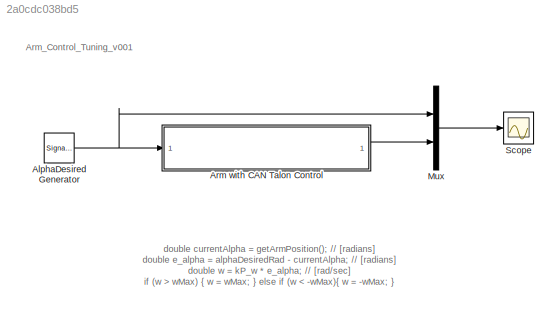
MODEL slx_2a0cdc038bd5
KIND model
CONFIG AbsTol = auto
CONFIG EnableMultiTasking = off
CONFIG FixedStep = auto
CONFIG MaxStep = 0.01
CONFIG MinStep = auto
CONFIG RelTol = 1e-3
CONFIG SampleTimeConstraint = Unconstrained
CONFIG Solver = VariableStepAuto
CONFIG SolverName = VariableStepAuto
CONFIG StartTime = 0.0
CONFIG StopTime = 10.0
BLOCK [SignalGenerator] AlphaDesired Generator
  Amplitude = 10
  Frequency = 0.5
  Ports = [0, 1]
  WaveForm = square
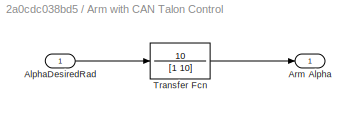
BLOCK [SubSystem] Arm with CAN Talon Control 
  Ports = [1, 1]
  RequestExecContextInheritance = off
  Variant = off
BLOCK [Inport] Arm with CAN Talon Control /AlphaDesiredRad
  IconDisplay = Port number
BLOCK [Outport] Arm with CAN Talon Control /Arm Alpha
  IconDisplay = Port number
BLOCK [TransferFcn] Arm with CAN Talon Control /Transfer Fcn
  Denominator = [1 10]
  Numerator = 10
BLOCK [Mux] Mux
  DisplayOption = bar
  Inputs = 2
  Ports = [2, 1]
BLOCK [Scope] Scope
  NumInputPorts = 1
  Ports = [1]
  ScopeSpecificationString = Simulink.scopes.TimeScopeBlockCfg('CurrentConfiguration', extmgr.ConfigurationSet(extmgr.Configuration('Core','General UI',true),extmgr.Configuration('Core','Source UI',true),extmgr.Configuration('Sources','WiredSimulink',true),extmgr.Configuration('Visuals','Time Domain',true,'SerializedDisplays',{struct('MinYLimReal','-12.5','MaxYLimReal','12.5','YLabelReal','','MinYLimMag','0.00000','MaxYLimMag...<+1428ch>
ANNOTATION (root): double currentAlpha = getArmPosition(); // [radians] double e_alpha = alphaDesiredRad - currentAlpha; // [radians] double w = kP_w * e_alpha; // [rad/sec] if (w > wMax) { w = wMax; } else if (w < -wMax){ w = -wMax; } double currentFPGA = m_timer.GetFPGATimestamp(); double elapsedTime = currentFPGA - lastFPGATime; lastFPGATime = currentFPGA; double alphaDesired_CAN_TALON = currentAlpha + (w * Ts); ...<+109ch>
ANNOTATION (root): Arm_Control_Tuning_v001
NET AlphaDesired Generator:1 -> Arm with CAN Talon Control :1, Mux:1
LINE Arm with CAN Talon Control /AlphaDesiredRad:1 -> Arm with CAN Talon Control /Transfer Fcn:1
LINE Arm with CAN Talon Control /Transfer Fcn:1 -> Arm with CAN Talon Control /Arm Alpha:1
LINE Arm with CAN Talon Control :1 -> Mux:2
LINE Mux:1 -> Scope:1
note: NET lines group one-source signal fan-out (src -> all destinations, sorted); 1:1 wires keep LINE
